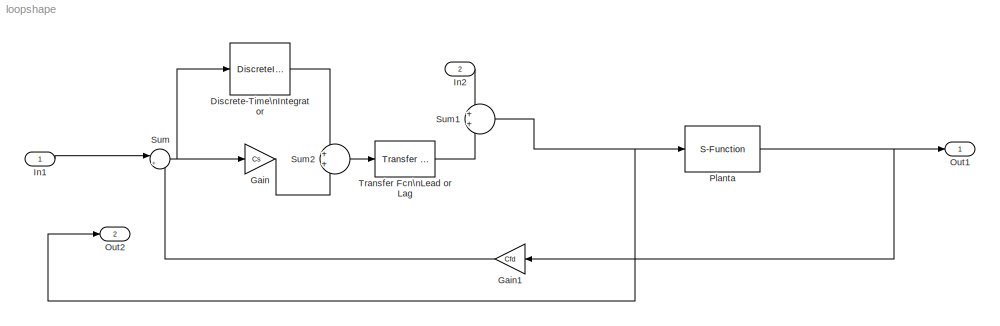
MODEL loopshape
KIND model
BLOCK [DiscreteIntegrator] Discrete-Time\nIntegrator
  ICPrevOutput = DiscIntNeverNeededParam
  ICPrevScaledInput = DiscIntNeverNeededParam
  InitialConditionSetting = State (most efficient)
  IntegratorMethod = Integration: Trapezoidal
  Ports = [1, 1]
  SID = 27
  SampleTime = -1
  gainval = KI
BLOCK [Gain] Gain
  Gain = Cs
  OutDataTypeStr = Inherit: Inherit via internal rule
  ParamDataTypeStr = Inherit: Inherit via internal rule
  SID = 3
  SaturateOnIntegerOverflow = off
BLOCK [Gain] Gain1
  Gain = Cfd
  OutDataTypeStr = Inherit: Inherit via internal rule
  ParamDataTypeStr = Inherit: Inherit via internal rule
  SID = 26
  SaturateOnIntegerOverflow = off
BLOCK [Inport] In1
  IconDisplay = Port number
  SID = 7
BLOCK [Inport] In2
  IconDisplay = Port number
  Port = 2
  SID = 9
BLOCK [Outport] Out1
  IconDisplay = Port number
  SID = 8
BLOCK [Outport] Out2
  IconDisplay = Port number
  Port = 2
  SID = 14
BLOCK [S-Function] Planta
  EnableBusSupport = off
  FunctionName = UnstableBlackBox_30_sf
  Ports = [1, 1]
  SFcnIsStateOwnerBlock = on
  SFcnStateName = DWORK0
  SFunctionDeploymentMode = off
  SID = 18
BLOCK [Sum] Sum
  IconShape = round
  InputSameDT = off
  Inputs = |+-
  OutDataTypeStr = Inherit: Inherit via internal rule
  Ports = [2, 1]
  SID = 4
  SaturateOnIntegerOverflow = off
BLOCK [Sum] Sum1
  IconShape = round
  InputSameDT = off
  OutDataTypeStr = Inherit: Inherit via internal rule
  Ports = [2, 1]
  SID = 10
  SaturateOnIntegerOverflow = off
BLOCK [Sum] Sum2
  IconShape = round
  InputSameDT = off
  OutDataTypeStr = Inherit: Inherit via internal rule
  Ports = [2, 1]
  SID = 28
  SaturateOnIntegerOverflow = off
BLOCK [Reference] Transfer Fcn\nLead or Lag  REF=simulink/Discrete/Transfer Fcn\nLead or Lag
  DoSatur = off
  ICPrevInput = 0.0
  ICPrevOutput = 0.0
  PoleZ = Pz
  Ports = [1, 1]
  RndMeth = Floor
  SID = 25
  SourceBlock = simulink/Discrete/Transfer Fcn\nLead or Lag
  SourceType = Lead or Lag Compensator
  ZeroZ = Zz
LINE Discrete-Time\nIntegrator:1 -> Sum2:1
LINE Gain1:1 -> Sum:2
LINE Gain:1 -> Sum2:2
LINE In1:1 -> Sum:1
LINE In2:1 -> Sum1:1
NET Planta:1 -> Gain1:1, Out1:1
NET Sum1:1 -> Out2:1, Planta:1
LINE Sum2:1 -> Transfer Fcn\nLead or Lag:1
NET Sum:1 -> Discrete-Time\nIntegrator:1, Gain:1
LINE Transfer Fcn\nLead or Lag:1 -> Sum1:2
note: NET lines group one-source signal fan-out (src -> all destinations, sorted); 1:1 wires keep LINE
